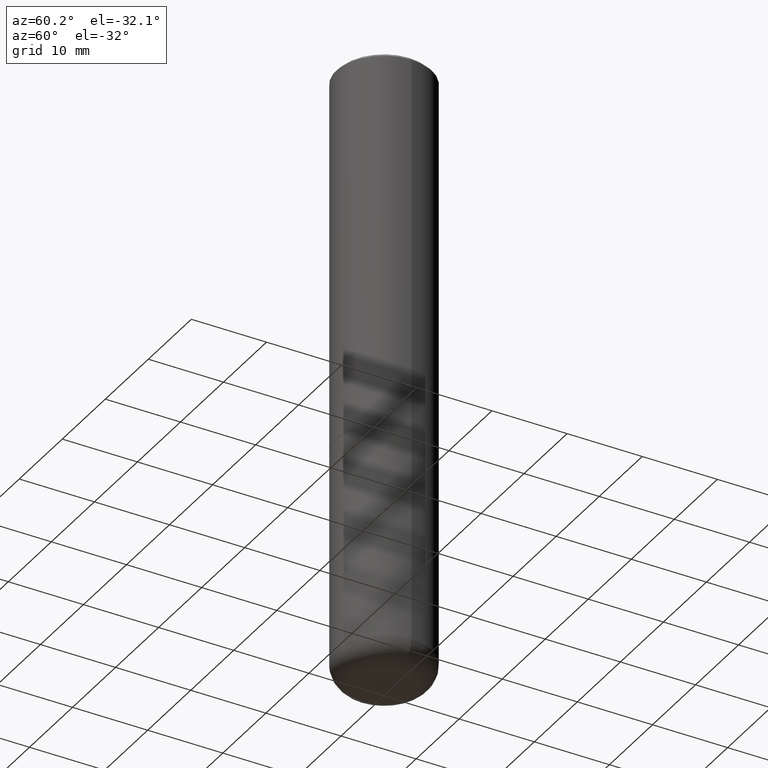
[diagram: clean part render]
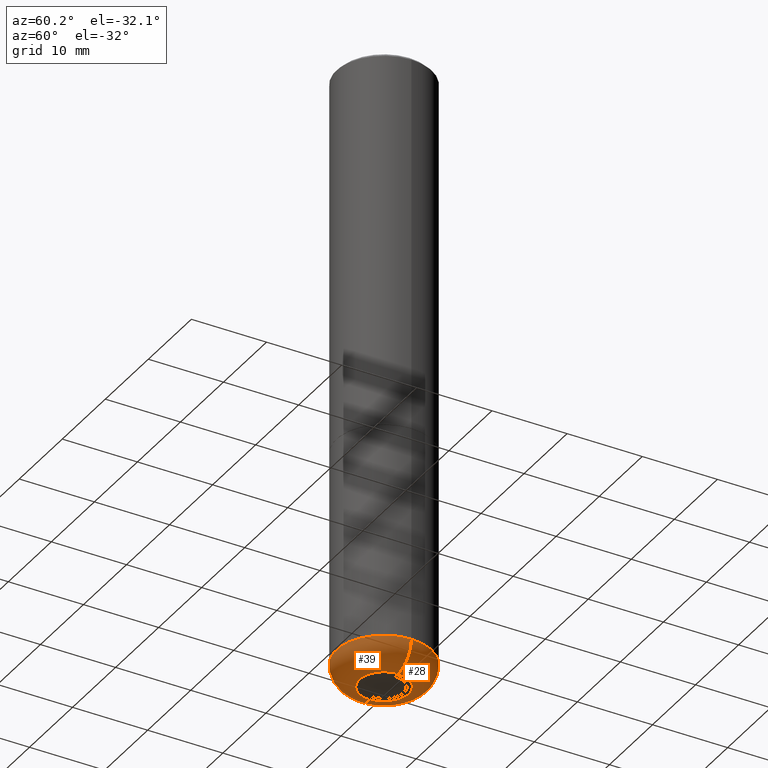
[diagram: same view with one multi-face feature highlighted, each face labeled with its STEP entity id]
A machine part, auxiliary view. The highlighted faces form ONE feature: a constant-radius fillet chain: 2 tangent blend faces with common blend radius 3.048 mm. The faces share edges in the B-rep.
Their STEP definitions:
[1] entity #28 (Torus):
#11 = DIRECTION ( 'NONE',  ( 7.105427357601001859E-15, 1.000000000000000000, -3.491481338843145583E-15 ) ) ;
#15 = AXIS2_PLACEMENT_3D ( 'NONE', #41, #239, #234 ) ;
#21 = EDGE_CURVE ( 'NONE', #199, #436, #414, .T. ) ;
#28 = ADVANCED_FACE ( 'NONE', ( #466 ), #257, .T. ) ;
#41 = CARTESIAN_POINT ( 'NONE',  ( 7.654328537274535481E-29, -1.092835254396835267E-14, -3.130004569232299527 ) ) ;
#73 = ORIENTED_EDGE ( 'NONE', *, *, #21, .F. ) ;
#90 = DIRECTION ( 'NONE',  ( 1.000000000000000000, -6.982962677686264344E-15, 0.000000000000000000 ) ) ;
#91 = DIRECTION ( 'NONE',  ( -1.000000000000000000, 7.105427357601003436E-15, 0.000000000000000000 ) ) ;
#94 = EDGE_CURVE ( 'NONE', #199, #125, #100, .T. ) ;
#96 = ORIENTED_EDGE ( 'NONE', *, *, #291, .T. ) ;
#100 = CIRCLE ( 'NONE', #432, 0.1289528157401960140 ) ;
#104 = CARTESIAN_POINT ( 'NONE',  ( 7.654328537274535481E-29, -1.092835254396835267E-14, -3.130004569232299527 ) ) ;
#118 = EDGE_LOOP ( 'NONE', ( #313, #96, #282, #73 ) ) ;
#123 = CARTESIAN_POINT ( 'NONE',  ( -0.2499999999999994449, -7.179300771427075001E-15, -3.130004569232299527 ) ) ;
#125 = VERTEX_POINT ( 'NONE', #329 ) ;
#142 = DIRECTION ( 'NONE',  ( 1.000000000000000000, -6.982962677686263555E-15, 0.000000000000000000 ) ) ;
#149 = DIRECTION ( 'NONE',  ( -2.445468806185136597E-29, 3.491481338843145583E-15, 1.000000000000000000 ) ) ;
#150 = CARTESIAN_POINT ( 'NONE',  ( 0.2499999999999994449, -1.267409321338991461E-14, -3.130004569232299527 ) ) ;
#170 = VERTEX_POINT ( 'NONE', #123 ) ;
#183 = AXIS2_PLACEMENT_3D ( 'NONE', #351, #11, #91 ) ;
#199 = VERTEX_POINT ( 'NONE', #354 ) ;
#223 = CIRCLE ( 'NONE', #183, 0.1199999999999995098 ) ;
#234 = DIRECTION ( 'NONE',  ( 1.000000000000000000, -6.982962677686270655E-15, 4.883557194083114583E-29 ) ) ;
#236 = AXIS2_PLACEMENT_3D ( 'NONE', #342, #433, #90 ) ;
#239 = DIRECTION ( 'NONE',  ( -2.445468806185136597E-29, 3.491481338843145583E-15, 1.000000000000000000 ) ) ;
#257 = TOROIDAL_SURFACE ( 'NONE', #15, 0.1300000000000002265, 0.1199999999999995098 ) ;
#282 = ORIENTED_EDGE ( 'NONE', *, *, #332, .F. ) ;
#288 = CIRCLE ( 'NONE', #327, 0.2499999999999994449 ) ;
#291 = EDGE_CURVE ( 'NONE', #125, #170, #223, .T. ) ;
#313 = ORIENTED_EDGE ( 'NONE', *, *, #94, .T. ) ;
#327 = AXIS2_PLACEMENT_3D ( 'NONE', #104, #477, #142 ) ;
#329 = CARTESIAN_POINT ( 'NONE',  ( -0.1289528157401960140, -9.791522595504129181E-15, -3.250000000000000000 ) ) ;
#332 = EDGE_CURVE ( 'NONE', #436, #170, #288, .T. ) ;
#342 = CARTESIAN_POINT ( 'NONE',  ( 0.1300000000000002265, -1.183613769206756923E-14, -3.130004569232299527 ) ) ;
#347 = CARTESIAN_POINT ( 'NONE',  ( 7.947773620101693940E-29, -1.134731435124022443E-14, -3.250000000000000000 ) ) ;
#351 = CARTESIAN_POINT ( 'NONE',  ( -0.1300000000000002265, -1.000464698748022161E-14, -3.130004569232299527 ) ) ;
#354 = CARTESIAN_POINT ( 'NONE',  ( 0.1289528157401960140, -1.224778705073656802E-14, -3.250000000000000000 ) ) ;
#414 = CIRCLE ( 'NONE', #236, 0.1199999999999995098 ) ;
#432 = AXIS2_PLACEMENT_3D ( 'NONE', #347, #149, #458 ) ;
#433 = DIRECTION ( 'NONE',  ( -6.982962677686266711E-15, -1.000000000000000000, 3.491481338843145583E-15 ) ) ;
#436 = VERTEX_POINT ( 'NONE', #150 ) ;
#458 = DIRECTION ( 'NONE',  ( 1.000000000000000000, -6.982962677686273810E-15, 0.000000000000000000 ) ) ;
#466 = FACE_OUTER_BOUND ( 'NONE', #118, .T. ) ;
#477 = DIRECTION ( 'NONE',  ( -2.445468806185136597E-29, 3.491481338843145583E-15, 1.000000000000000000 ) ) ;
[2] entity #39 (Torus):
#11 = DIRECTION ( 'NONE',  ( 7.105427357601001859E-15, 1.000000000000000000, -3.491481338843145583E-15 ) ) ;
#21 = EDGE_CURVE ( 'NONE', #199, #436, #414, .T. ) ;
#34 = ORIENTED_EDGE ( 'NONE', *, *, #165, .T. ) ;
#39 = ADVANCED_FACE ( 'NONE', ( #200 ), #135, .T. ) ;
#53 = DIRECTION ( 'NONE',  ( -2.445468806185136597E-29, 3.491481338843145583E-15, 1.000000000000000000 ) ) ;
#64 = CARTESIAN_POINT ( 'NONE',  ( 7.947773620101693940E-29, -1.134731435124022443E-14, -3.250000000000000000 ) ) ;
#90 = DIRECTION ( 'NONE',  ( 1.000000000000000000, -6.982962677686264344E-15, 0.000000000000000000 ) ) ;
#91 = DIRECTION ( 'NONE',  ( -1.000000000000000000, 7.105427357601003436E-15, 0.000000000000000000 ) ) ;
#116 = AXIS2_PLACEMENT_3D ( 'NONE', #173, #476, #250 ) ;
#119 = DIRECTION ( 'NONE',  ( 1.000000000000000000, -6.982962677686273810E-15, 0.000000000000000000 ) ) ;
#123 = CARTESIAN_POINT ( 'NONE',  ( -0.2499999999999994449, -7.179300771427075001E-15, -3.130004569232299527 ) ) ;
#125 = VERTEX_POINT ( 'NONE', #329 ) ;
#128 = AXIS2_PLACEMENT_3D ( 'NONE', #64, #53, #119 ) ;
#135 = TOROIDAL_SURFACE ( 'NONE', #213, 0.1300000000000002265, 0.1199999999999995098 ) ;
#150 = CARTESIAN_POINT ( 'NONE',  ( 0.2499999999999994449, -1.267409321338991461E-14, -3.130004569232299527 ) ) ;
#159 = EDGE_CURVE ( 'NONE', #170, #436, #256, .T. ) ;
#165 = EDGE_CURVE ( 'NONE', #125, #199, #479, .T. ) ;
#170 = VERTEX_POINT ( 'NONE', #123 ) ;
#173 = CARTESIAN_POINT ( 'NONE',  ( 7.654328537274535481E-29, -1.092835254396835267E-14, -3.130004569232299527 ) ) ;
#183 = AXIS2_PLACEMENT_3D ( 'NONE', #351, #11, #91 ) ;
#199 = VERTEX_POINT ( 'NONE', #354 ) ;
#200 = FACE_OUTER_BOUND ( 'NONE', #277, .T. ) ;
#213 = AXIS2_PLACEMENT_3D ( 'NONE', #381, #307, #388 ) ;
#223 = CIRCLE ( 'NONE', #183, 0.1199999999999995098 ) ;
#236 = AXIS2_PLACEMENT_3D ( 'NONE', #342, #433, #90 ) ;
#246 = ORIENTED_EDGE ( 'NONE', *, *, #21, .T. ) ;
#249 = ORIENTED_EDGE ( 'NONE', *, *, #159, .F. ) ;
#250 = DIRECTION ( 'NONE',  ( 1.000000000000000000, -6.982962677686263555E-15, 0.000000000000000000 ) ) ;
#256 = CIRCLE ( 'NONE', #116, 0.2499999999999994449 ) ;
#277 = EDGE_LOOP ( 'NONE', ( #353, #34, #246, #249 ) ) ;
#291 = EDGE_CURVE ( 'NONE', #125, #170, #223, .T. ) ;
#307 = DIRECTION ( 'NONE',  ( -2.445468806185136597E-29, 3.491481338843145583E-15, 1.000000000000000000 ) ) ;
#329 = CARTESIAN_POINT ( 'NONE',  ( -0.1289528157401960140, -9.791522595504129181E-15, -3.250000000000000000 ) ) ;
#342 = CARTESIAN_POINT ( 'NONE',  ( 0.1300000000000002265, -1.183613769206756923E-14, -3.130004569232299527 ) ) ;
#351 = CARTESIAN_POINT ( 'NONE',  ( -0.1300000000000002265, -1.000464698748022161E-14, -3.130004569232299527 ) ) ;
#353 = ORIENTED_EDGE ( 'NONE', *, *, #291, .F. ) ;
#354 = CARTESIAN_POINT ( 'NONE',  ( 0.1289528157401960140, -1.224778705073656802E-14, -3.250000000000000000 ) ) ;
#381 = CARTESIAN_POINT ( 'NONE',  ( 7.654328537274535481E-29, -1.092835254396835267E-14, -3.130004569232299527 ) ) ;
#388 = DIRECTION ( 'NONE',  ( 1.000000000000000000, -6.982962677686270655E-15, 4.883557194083114583E-29 ) ) ;
#414 = CIRCLE ( 'NONE', #236, 0.1199999999999995098 ) ;
#433 = DIRECTION ( 'NONE',  ( -6.982962677686266711E-15, -1.000000000000000000, 3.491481338843145583E-15 ) ) ;
#436 = VERTEX_POINT ( 'NONE', #150 ) ;
#476 = DIRECTION ( 'NONE',  ( -2.445468806185136597E-29, 3.491481338843145583E-15, 1.000000000000000000 ) ) ;
#479 = CIRCLE ( 'NONE', #128, 0.1289528157401960140 ) ;